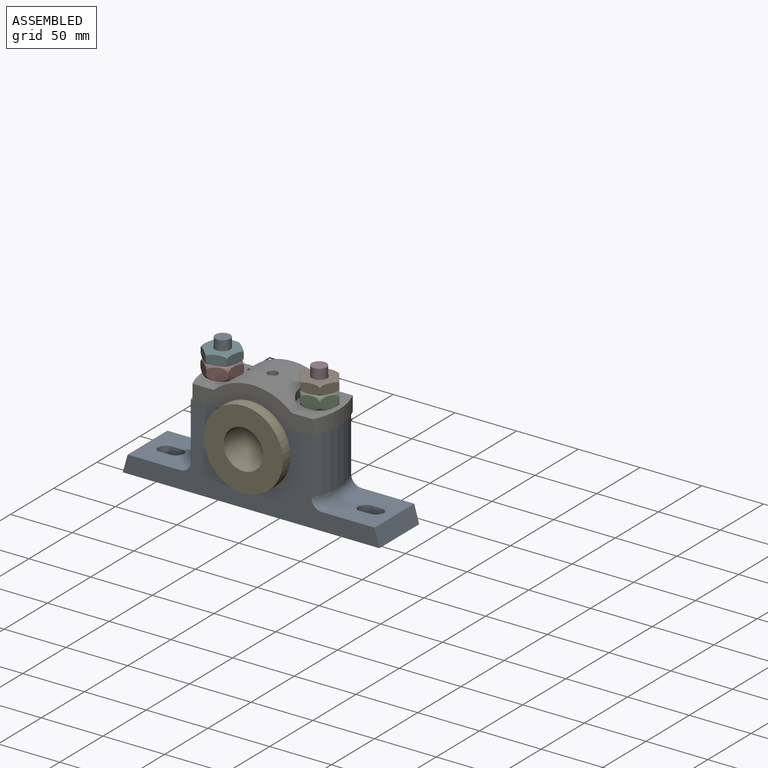
[diagram: assembled view]
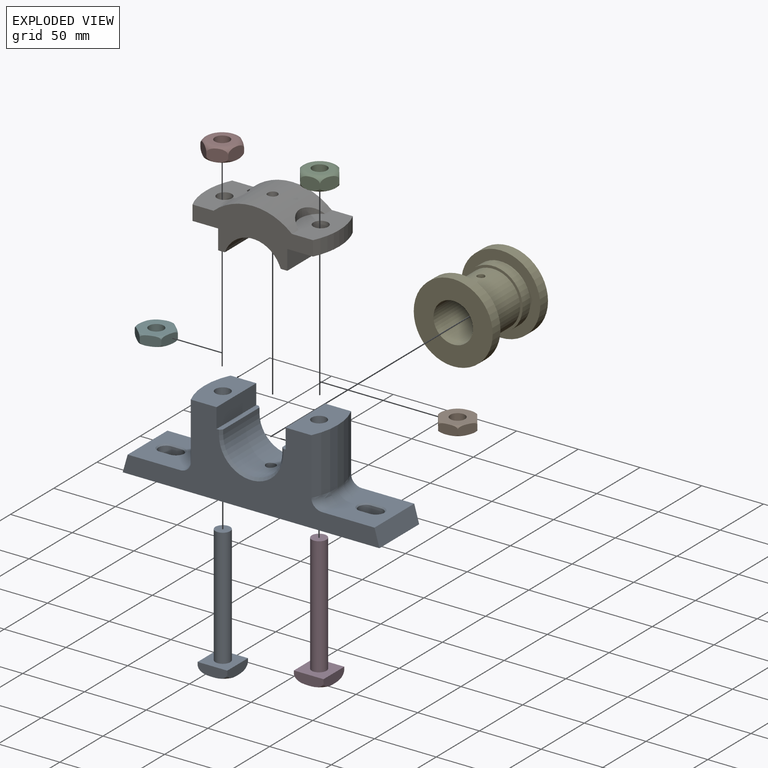
[diagram: exploded view]
GUIDED TOUR — MATED ASSEMBLY (Onshape document 11a59b53d791fe87c3ec195c, AutoMate assembly 11a59b53d791fe87c3ec195c_f65ced6ba96391d790a32922_560dd76b558639ddb064d24c_default)

This assembly has 9 components, labeled P0..P8 below (a component is one placed occurrence of a part; the same part can appear more than once), held together by 6 mates. A mate is a constraint between two components; its type names the relative motion it leaves free:
  FASTENED — locks the two components together rigidly (no relative motion),
  REVOLUTE — leaves rotation about the listed axis free (a hinge).
Axis/direction vectors are unit vectors and 'through' points are millimeter coordinates, both in the assembly's world frame.

MATES
  1. FASTENED "Fastened 3": P4 <-> P8, direction (0.000, 1.000, 0.000) through (0.00, 23.00, 25.78) mm
  2. REVOLUTE "Revolute 4": P5 <-> P7, axis (0.000, 0.000, -1.000) through (-39.48, 23.00, 69.78) mm
  3. FASTENED "Fastened 2": P6 <-> P8, direction (0.000, 0.000, -1.000) through (40.34, 23.00, 45.78) mm
  4. FASTENED "Fastened 4": P3 <-> P8, direction (0.000, 0.000, -1.000) through (39.00, 23.00, -10.22) mm
  5. FASTENED "Fastened 5": P0 <-> P8, direction (0.000, 0.000, 1.000) through (-39.00, 23.00, -10.22) mm
  6. REVOLUTE "Revolute 3": P1 <-> P2, axis (0.000, 0.000, 1.000) through (39.48, 23.00, 69.78) mm

ASSEMBLY ORDER
  1. P8 — the base component [order heuristic]
  2. P4 — core [order heuristic]
  3. P6 — core [order heuristic]
  4. P2 [order verified]
  5. P1 [order verified]
  6. P7 [order verified]
  7. P5 [order verified]
  8. P0 [order verified]
  9. P3 [order verified]
Order-tag legend:
  [order verified] — this step's position reverses a verified removal order: the component was checked to insert without passing through the ones already placed.
  [order heuristic] — the first 3 components form the assembly's core: parts whose collision-free extraction could not be verified, listed in mate-graph order.

Of the 9 components, 1 carries the full construction recipe — the FeatureScript program that regenerates the part's solid from scratch; the rest are supplied as boundary geometry only.
Each toured component is shown spotlighted twice — in the assembled view, then in the exploded view, where a leader line traces a displaced component back to its assembled socket (saturated green if recipe-attached, orange if geometry-only; every other component desaturated gray) — followed by its recipe or geometry summary and the mates that hold it.
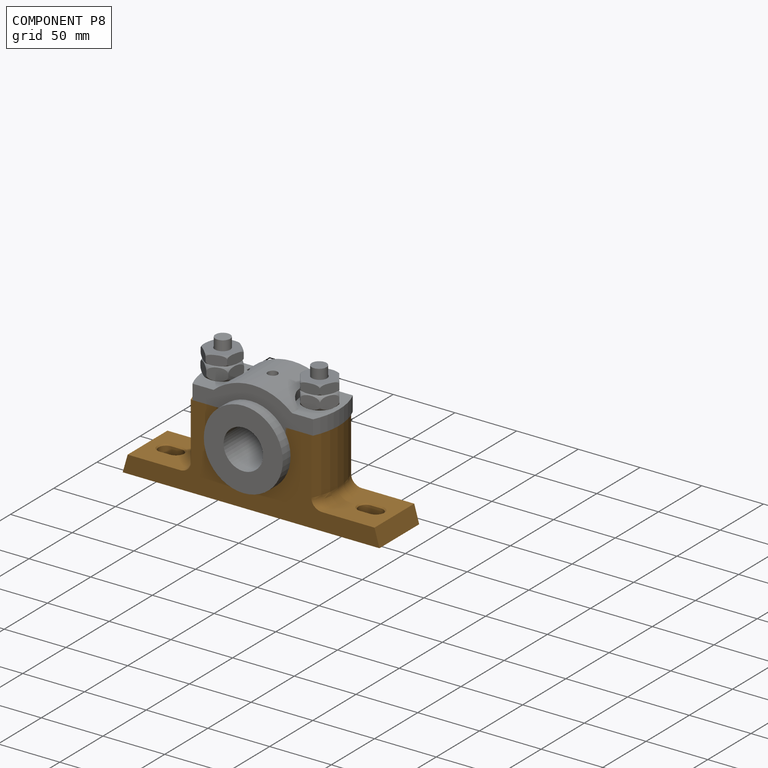
[diagram: component P8 — assembled]
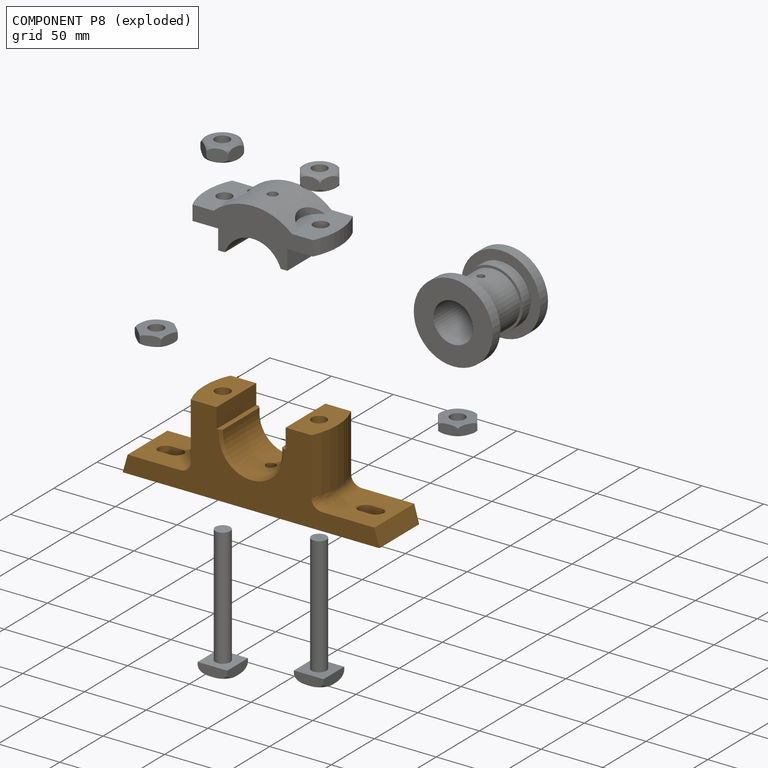
[diagram: component P8 — exploded]
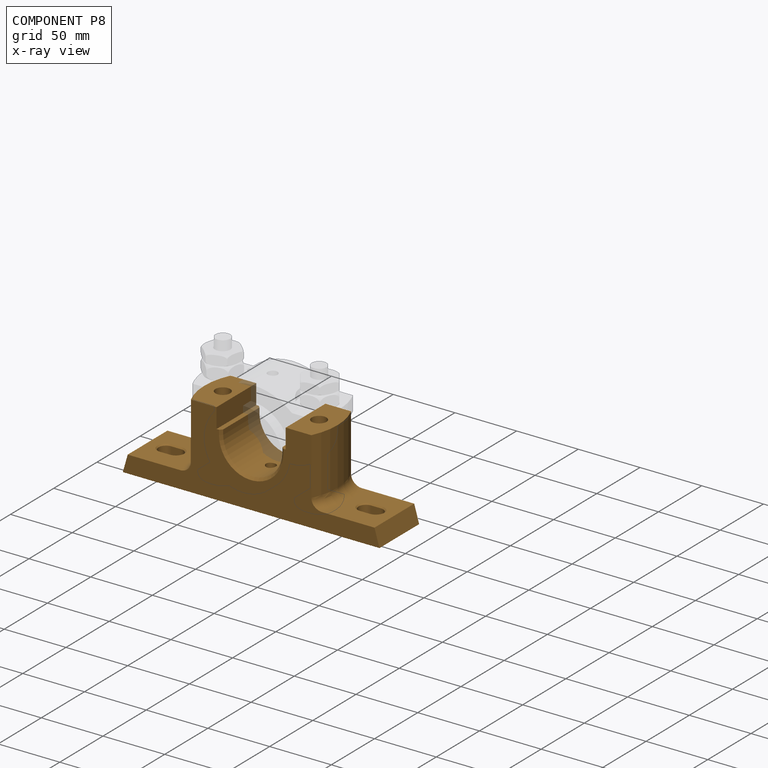
[diagram: component P8 — x-ray view]
COMPONENT P8 — geometry summary (no construction recipe available for this part):
  bounding box: 208.0 x 68.0 x 62.4 mm
  B-rep topology: 1 solid, 61 faces, 308 edges
  volume: 255276 mm^3 (29% of its bounding box)
  symmetry: 2-fold rotationally symmetric about the z axis; mirror-symmetric across its x mid-plane, y mid-plane
Held by: FASTENED mate "Fastened 3" to P4; FASTENED mate "Fastened 2" to P6; FASTENED mate "Fastened 4" to P3; FASTENED mate "Fastened 5" to P0.
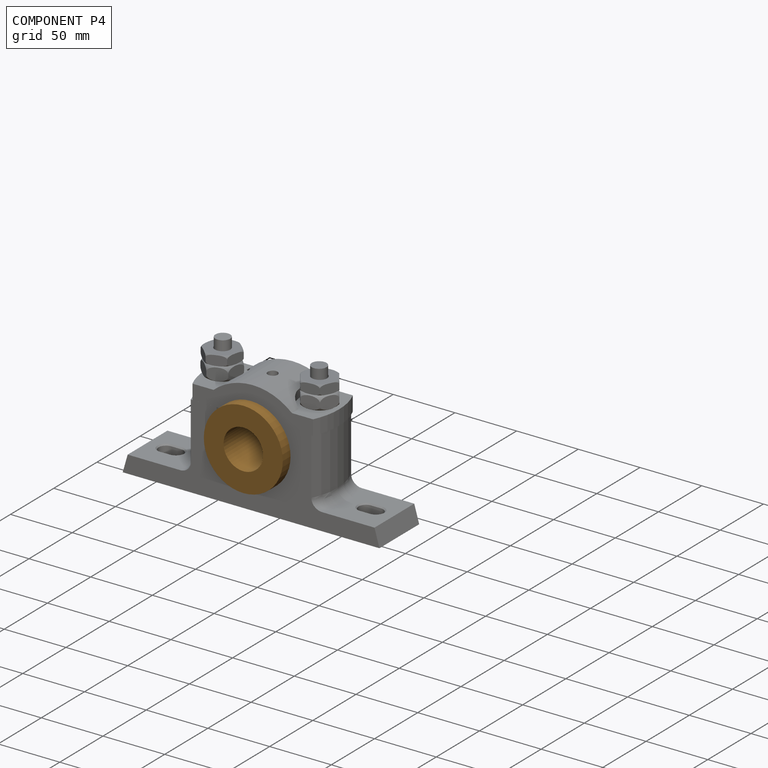
[diagram: component P4 — assembled]
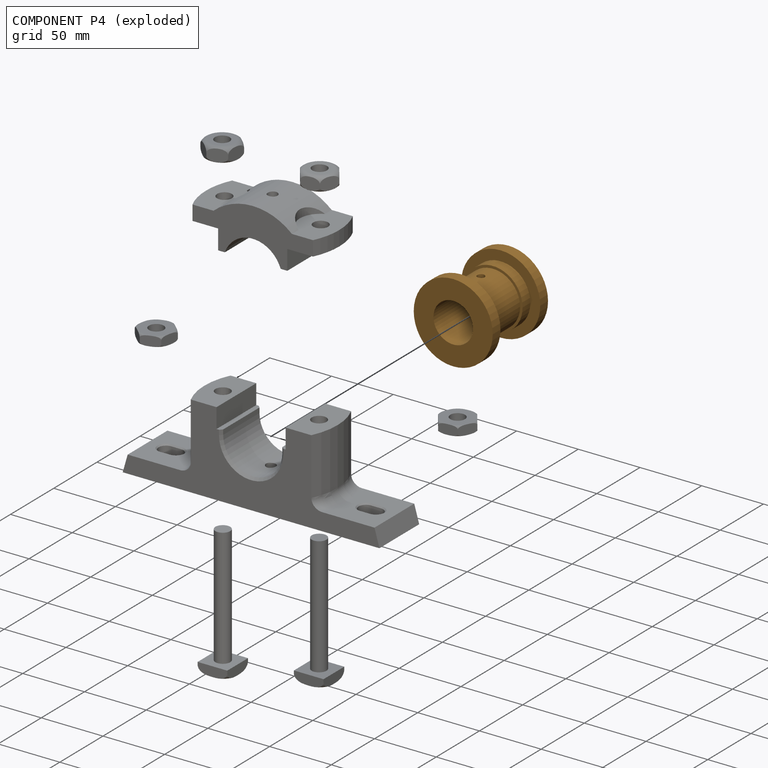
[diagram: component P4 — exploded]
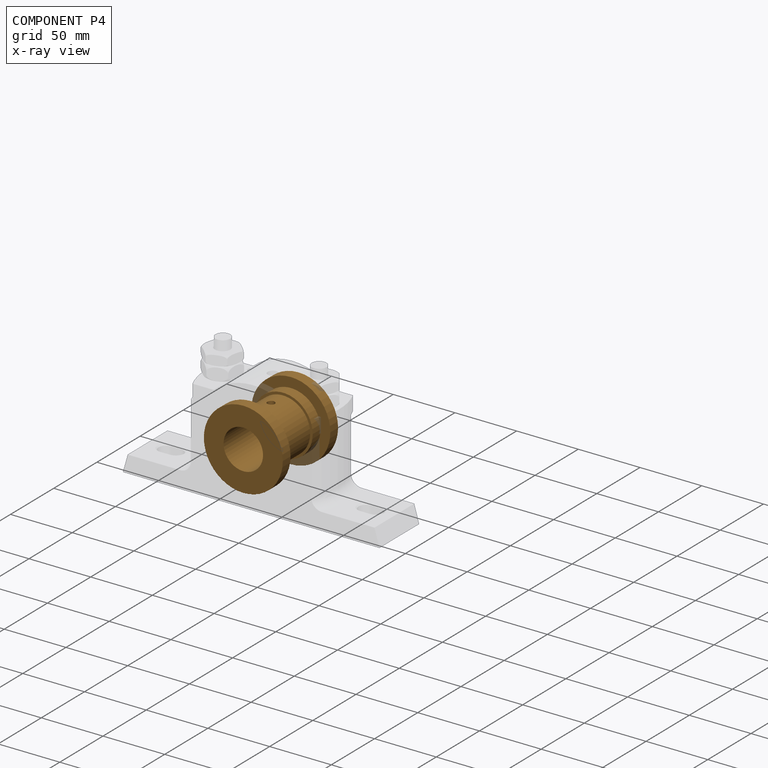
[diagram: component P4 — x-ray view]
COMPONENT P4 — geometry summary (no construction recipe available for this part):
  bounding box: 64.0 x 64.0 x 64.0 mm
  B-rep topology: 1 solid, 16 faces, 56 edges
  volume: 81419 mm^3 (31% of its bounding box)
  symmetry: 2-fold rotationally symmetric about the y axis; mirror-symmetric across its x mid-plane, z mid-plane
Held by: FASTENED mate "Fastened 3" to P8.
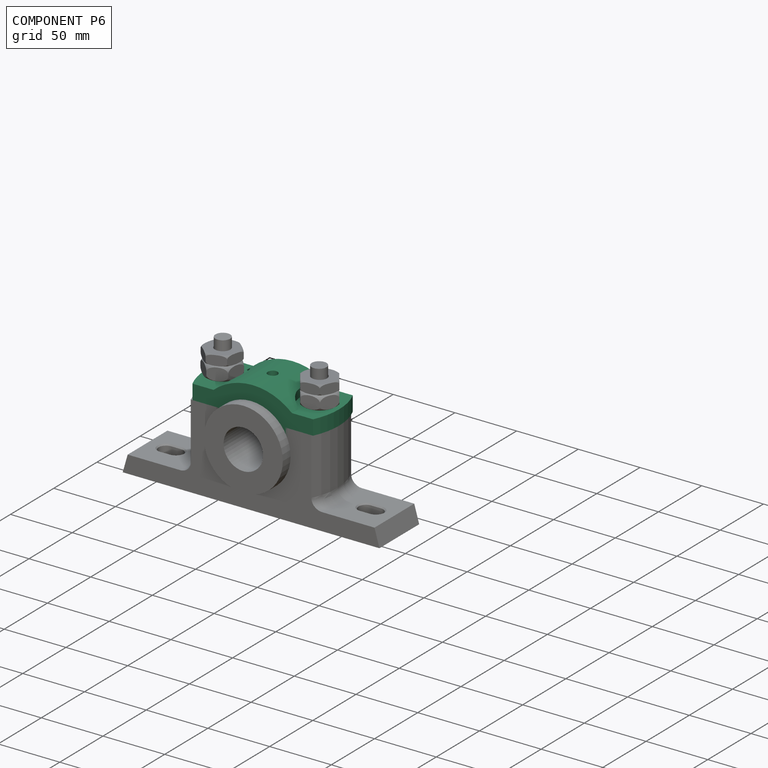
[diagram: component P6 — assembled]
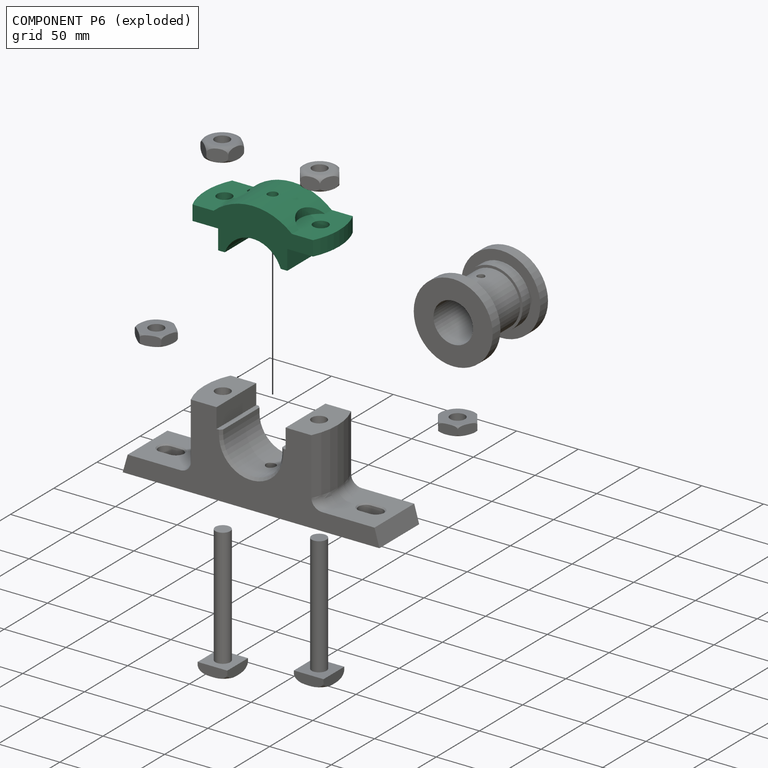
[diagram: component P6 — exploded]
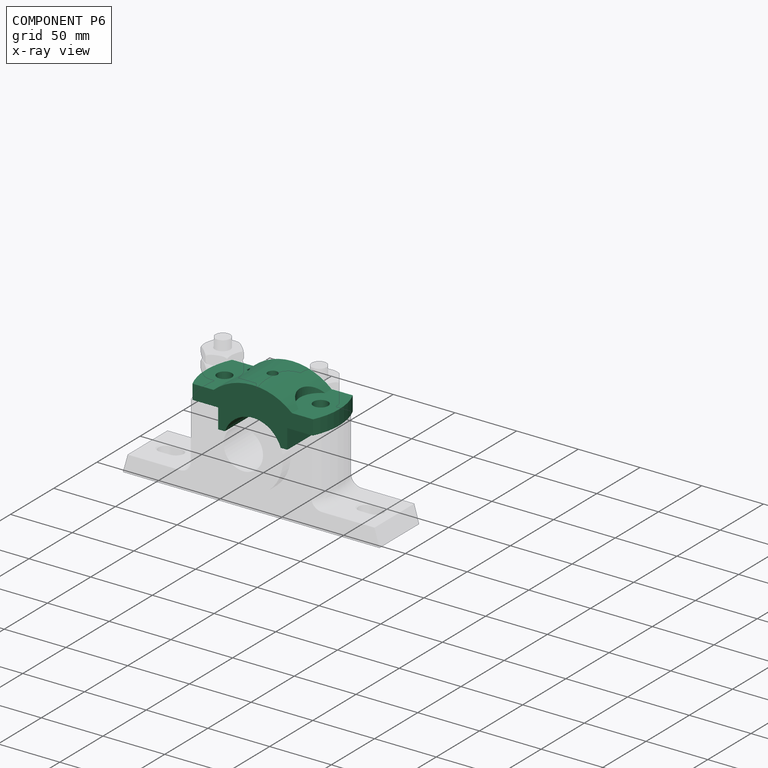
[diagram: component P6 — x-ray view]
COMPONENT P6 — recipe-attached (CADFS 00380877, mesh-verified: the recipe's output STEP matches this component's geometry to below the mesh-comparison resolution (tessellation chordal tolerance ~0.186 mm)).
Held by: FASTENED mate "Fastened 2" to P8.
Construction recipe (FeatureScript — the CAD program that rebuilds this solid; sketch coordinates are in the units given by the * unit suffixes, e.g. mm):

FeatureScript 1511;
import(path : "onshape/std/geometry.fs", version : "1511.0");
import(path : "onshape/std/common.fs", version : "1511.0");
const mm = millimeter;
const VERTEX = EntityType.VERTEX;
const EDGE = EntityType.EDGE;
const FACE = EntityType.FACE;
const BODY = EntityType.BODY;
function v(x, y){return vector(x, y);}
function OD(order){return orderDisambiguation(order);}
function OSD(set){return originalSetDisambiguation(set);}
function TD(topology){return topologyDisambiguation(topology);}
function TDD(query){return trueDependencyDisambiguation(query);}
function sQuery(a, b, c) {return sketchEntityQuery(a, b, c);}

annotation { "Feature Type Name" : "Feature", "Feature Type Description" : "" }
export const myFeature = defineFeature(function(context is Context, id is Id, definition is map)
    precondition{}
    {
        {
            var Q0;
            Q0=qCreatedBy(makeId("Front.planeOp"),FACE);
            var sketch = newSketch(context, id + "F0", { "sketchPlane" : qUnion([Q0])});
            skLineSegment(sketch, "E0.bottom", {"start": v(-54, 0) * mm, "end": v(54, 0) * mm});
            skLineSegment(sketch, "E0.top", {"start": v(-54, 12) * mm, "end": v(54, 12) * mm});
            skLineSegment(sketch, "E0.left", {"start": v(-54, 0) * mm, "end": v(-54, 12) * mm});
            skLineSegment(sketch, "E0.right", {"start": v(54, 0) * mm, "end": v(54, 12) * mm});
            skSolve(sketch);
        }
        {
            var Q0;
            Q0 = qSketchRegion(id + "F0", true);
            extrude(context, id + "F1", {"entities" : qUnion([Q0]), "endBound" : BoundingType.SYMMETRIC, "depth" : 46 * mm});
        }
        {
            var Q0;
            Q0=qCreatedBy(makeId("Front.planeOp"),FACE);
            var sketch = newSketch(context, id + "F2", { "sketchPlane" : qUnion([Q0])});
            skLineSegment(sketch, "E1", {"start": v(28, 0) * mm, "end": v(28, -16) * mm});
            skLineSegment(sketch, "E2", {"start": v(-28, 0) * mm, "end": v(-28, -16) * mm});
            skArc(sketch, "E3", {"start": v(22.63, -16) * mm, "mid": v(0, 0) * mm, "end": v(-22.63, -16) * mm});
            skLineSegment(sketch, "E4", {"start": v(-28, 0) * mm, "end": v(28, 0) * mm});
            skLineSegment(sketch, "E5", {"start": v(-22.63, -16) * mm, "end": v(-28, -16) * mm});
            skLineSegment(sketch, "E6", {"start": v(22.63, -16) * mm, "end": v(28, -16) * mm});
            skSolve(sketch);
        }
        {
            var Q0;
            Q0 = qSketchRegion(id + "F2", true);
            extrude(context, id + "F3", {"entities" : qUnion([Q0]), "operationType" : NewBodyOperationType.ADD, "endBound" : BoundingType.SYMMETRIC, "depth" : 46 * mm});
        }
        {
            var Q0;
            Q0=qCreatedBy(makeId("Front.planeOp"),FACE);
            var sketch = newSketch(context, id + "F4", { "sketchPlane" : qUnion([Q0])});
            skLineSegment(sketch, "E7.0", {"start": v(-54, 12) * mm, "end": v(54, 12) * mm});
            skArc(sketch, "E8", {"start": v(31.75, 12) * mm, "mid": v(0, 24) * mm, "end": v(-31.75, 12) * mm});
            skSolve(sketch);
        }
        {
            var Q0;
            Q0 = qSketchRegion(id + "F4", true);
            extrude(context, id + "F5", {"entities" : qUnion([Q0]), "operationType" : NewBodyOperationType.ADD, "endBound" : BoundingType.SYMMETRIC, "depth" : 46 * mm});
        }
        {
            var Q0;
            Q0=qCreatedBy(makeId("Top.planeOp"),FACE);
            var sketch = newSketch(context, id + "F6", { "sketchPlane" : qUnion([Q0])});
            skCircle(sketch, "E9", {"center": v(-39, 0) * mm, "radius": 6 * mm});
            skCircle(sketch, "E10", {"center": v(39, 0) * mm, "radius": 6 * mm});
            skSolve(sketch);
        }
        {
            var Q0;
            Q0 = qSketchRegion(id + "F6", true);
            extrude(context, id + "F7", {"entities" : qUnion([Q0]), "operationType" : NewBodyOperationType.REMOVE, "endBound" : BoundingType.THROUGH_ALL, "oppositeDirection" : true, "depth" : 25 * mm, "hasSecondDirection" : true, "secondDirectionOppositeDirection" : false, "secondDirectionDepth" : 25 * mm});
        }
        {
            var Q0;
            {var subQ4=sQuery(id+"F0.wireOp",EDGE,"E0.right");var subQ6=sQuery(id+"F0.wireOp",EDGE,"E0.top");Q0=makeQuery(id+"F5.boolean.opBoolean","SPLIT",FACE,{"disambiguationData":[TD([makeQuery(id+"F1.opExtrude","SWEPT_FACE",FACE,{"disambiguationData":[OSD([subQ4])]})])],"derivedFrom":makeQuery(id+"F1.opExtrude","SWEPT_FACE",FACE,{"disambiguationData":[OSD([subQ6])]})});}
            var sketch = newSketch(context, id + "F8", { "sketchPlane" : qUnion([Q0])});
            skLineSegment(sketch, "E11.0", {"start": v(31.75, -23) * mm, "end": v(31.75, 23) * mm});
            skLineSegment(sketch, "E12.0", {"start": v(-31.75, -23) * mm, "end": v(-31.75, 23) * mm});
            skArc(sketch, "E13", {"start": v(-31.75, -15.38) * mm, "mid": v(-22, 0) * mm, "end": v(-31.75, 15.38) * mm});
            skArc(sketch, "E14", {"start": v(31.75, 15.38) * mm, "mid": v(22, 0) * mm, "end": v(31.75, -15.38) * mm});
            skSolve(sketch);
        }
        {
            var Q0;
            Q0 = qSketchRegion(id + "F8", true);
            extrude(context, id + "F9", {"entities" : qUnion([Q0]), "operationType" : NewBodyOperationType.REMOVE, "depth" : 25 * mm});
        }
        {
            var Q0;
            {var subQ4=sQuery(id+"F0.wireOp",EDGE,"E0.right");var subQ6=sQuery(id+"F0.wireOp",EDGE,"E0.top");Q0=makeQuery(id+"F9.boolean.opBoolean","MERGE",FACE,{"derivedFrom":[makeQuery(id+"F5.boolean.opBoolean","SPLIT",FACE,{"disambiguationData":[TD([makeQuery(id+"F1.opExtrude","SWEPT_FACE",FACE,{"disambiguationData":[OSD([subQ4])]})])],"derivedFrom":makeQuery(id+"F1.opExtrude","SWEPT_FACE",FACE,{"disambiguationData":[OSD([subQ6])]})}),makeQuery(id+"F9.opExtrude","CAP_FACE",FACE,{"disambiguationData":[OSD([sQuery(id+"F8.wireOp",EDGE,"E11.0"),sQuery(id+"F8.wireOp",EDGE,"E14")])],"isStart":true})]});}
            var sketch = newSketch(context, id + "F10", { "sketchPlane" : qUnion([Q0])});
            skCircle(sketch, "E15", {"center": v(0, 0) * mm, "radius": 4 * mm});
            skSolve(sketch);
        }
        {
            var Q0;
            Q0 = qSketchRegion(id + "F10", true);
            extrude(context, id + "F11", {"entities" : qUnion([Q0]), "operationType" : NewBodyOperationType.REMOVE, "depth" : 16 * mm});
        }
        {
            var Q0;
            Q0=makeQuery(id+"F11.boolean.opBoolean","COPY",FACE,{"derivedFrom":makeQuery(id+"F11.opExtrude","CAP_FACE",FACE,{"disambiguationData":[OSD([sQuery(id+"F10.wireOp",EDGE,"E15")])],"isStart":true})});
            var sketch = newSketch(context, id + "F12", { "sketchPlane" : qUnion([Q0])});
            skCircle(sketch, "E16", {"center": v(0, 0) * mm, "radius": 3 * mm});
            skSolve(sketch);
        }
        {
            var Q0;
            Q0 = qSketchRegion(id + "F12", true);
            extrude(context, id + "F13", {"entities" : qUnion([Q0]), "operationType" : NewBodyOperationType.REMOVE, "oppositeDirection" : true, "depth" : 25 * mm, "hasSecondDirection" : true, "secondDirectionOppositeDirection" : false, "secondDirectionDepth" : 25 * mm});
        }
        {
            var Q0;
            {var subQ5=sQuery(id+"F0.wireOp",EDGE,"E0.left");var subQ6=sQuery(id+"F0.wireOp",EDGE,"E0.top");Q0=makeQuery(id+"F9.boolean.opBoolean","MERGE",FACE,{"derivedFrom":[makeQuery(id+"F5.boolean.opBoolean","SPLIT",FACE,{"disambiguationData":[TD([makeQuery(id+"F1.opExtrude","SWEPT_FACE",FACE,{"disambiguationData":[OSD([subQ5])]})])],"derivedFrom":makeQuery(id+"F1.opExtrude","SWEPT_FACE",FACE,{"disambiguationData":[OSD([subQ6])]})}),makeQuery(id+"F9.opExtrude","CAP_FACE",FACE,{"disambiguationData":[OSD([sQuery(id+"F8.wireOp",EDGE,"E12.0"),sQuery(id+"F8.wireOp",EDGE,"E13")])],"isStart":true})]});}
            var sketch = newSketch(context, id + "F14", { "sketchPlane" : qUnion([Q0])});
            skArc(sketch, "E17", {"start": v(-48.86, 23) * mm, "mid": v(-54, 0) * mm, "end": v(-48.86, -23) * mm});
            skLineSegment(sketch, "E18.0", {"start": v(48.86, -23) * mm, "end": v(54, -23) * mm});
            skLineSegment(sketch, "E19.0", {"start": v(48.86, 23) * mm, "end": v(54, 23) * mm});
            skArc(sketch, "E20", {"start": v(48.86, -23) * mm, "mid": v(54, 0) * mm, "end": v(48.86, 23) * mm});
            skPoint(sketch, "E21.orphan", {"position": v(31.75, 23) * mm});
            skLineSegment(sketch, "E22", {"start": v(54, 23) * mm, "end": v(54, -23) * mm});
            skPoint(sketch, "E23.orphan", {"position": v(31.75, -23) * mm});
            skLineSegment(sketch, "E24", {"start": v(-48.86, 23) * mm, "end": v(-54, 23) * mm});
            skLineSegment(sketch, "E25", {"start": v(-54, 23) * mm, "end": v(-54, -23) * mm});
            skLineSegment(sketch, "E26", {"start": v(-54, -23) * mm, "end": v(-48.86, -23) * mm});
            skSolve(sketch);
        }
        {
            var Q0;
            Q0 = qSketchRegion(id + "F14", true);
            extrude(context, id + "F15", {"entities" : qUnion([Q0]), "operationType" : NewBodyOperationType.REMOVE, "oppositeDirection" : true, "depth" : 25 * mm});
        }
    });
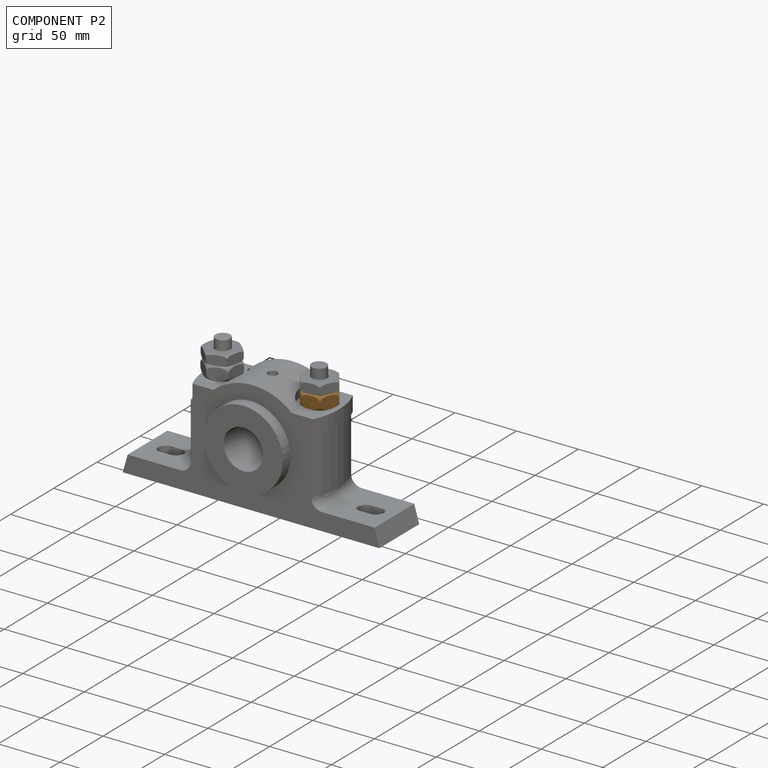
[diagram: component P2 — assembled]
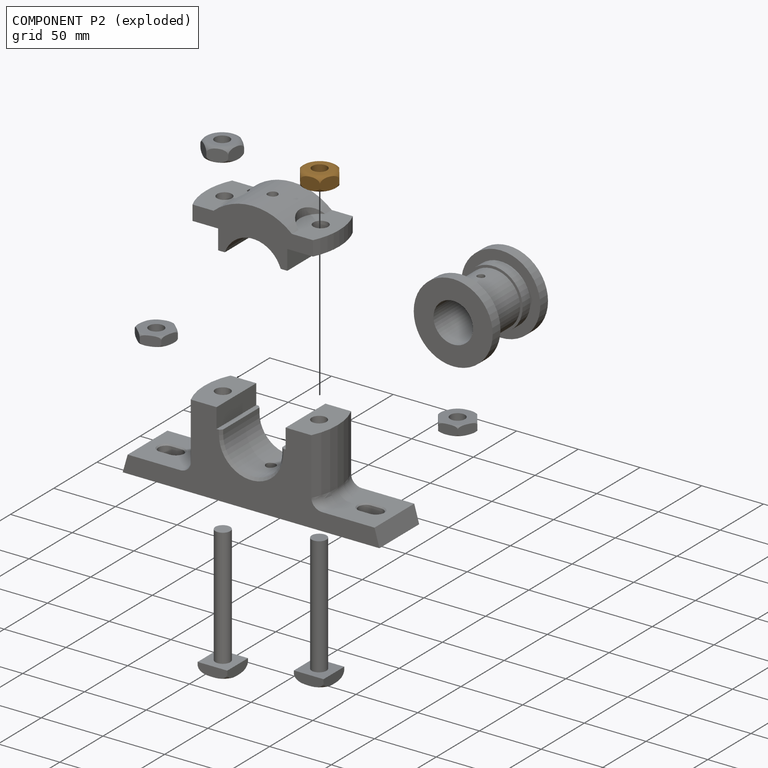
[diagram: component P2 — exploded]
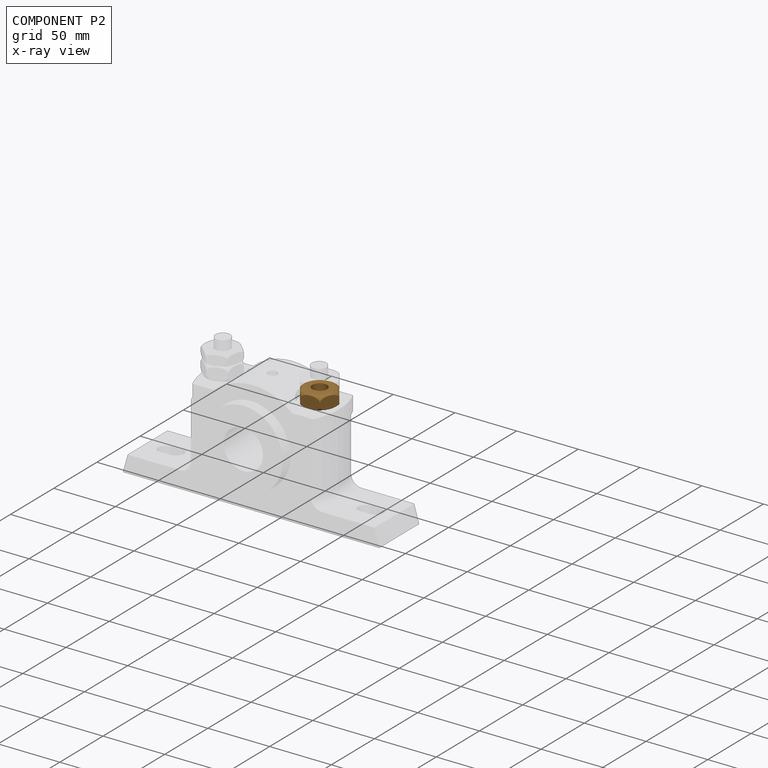
[diagram: component P2 — x-ray view]
COMPONENT P2 — geometry summary (no construction recipe available for this part):
  bounding box: 32.5 x 32.5 x 12.0 mm
  B-rep topology: 1 solid, 11 faces, 54 edges
  volume: 5337 mm^3 (42% of its bounding box)
  symmetry: 2-fold rotationally symmetric about the x axis; 6-fold rotationally symmetric about the y axis; 2-fold rotationally symmetric about the z axis; mirror-symmetric across its x mid-plane, y mid-plane, z mid-plane
Held by: REVOLUTE mate "Revolute 3" to P1.
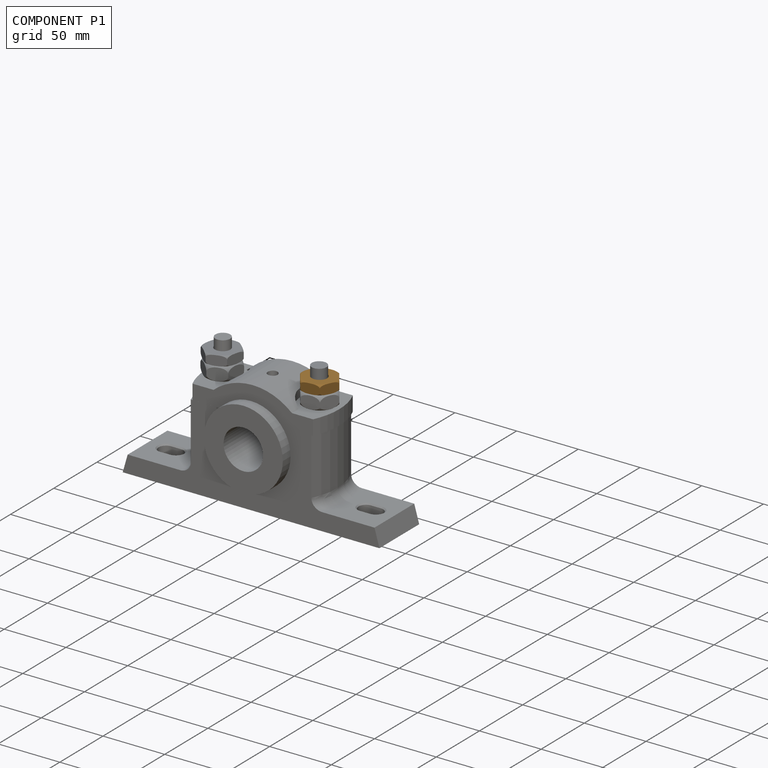
[diagram: component P1 — assembled]
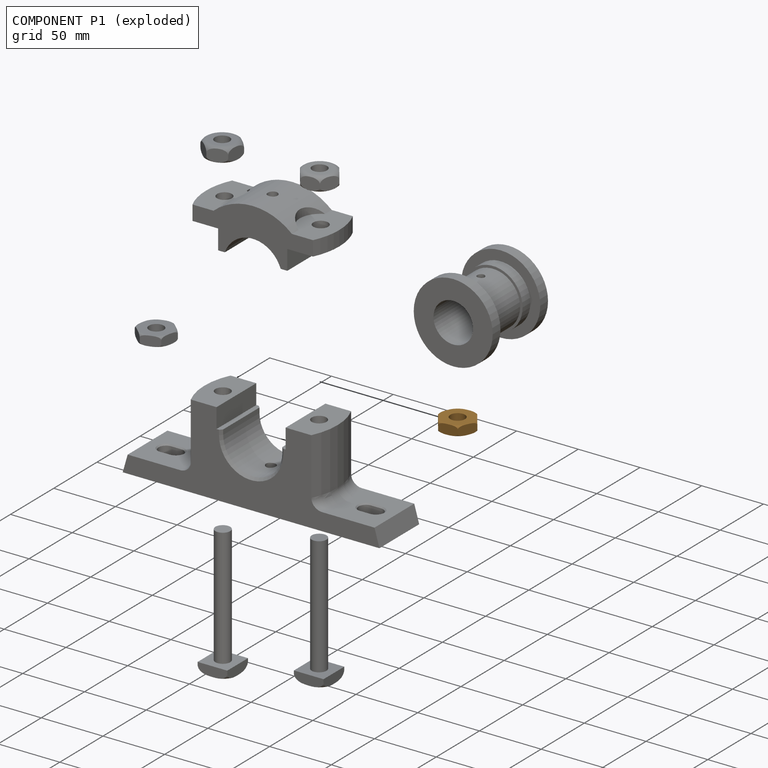
[diagram: component P1 — exploded]
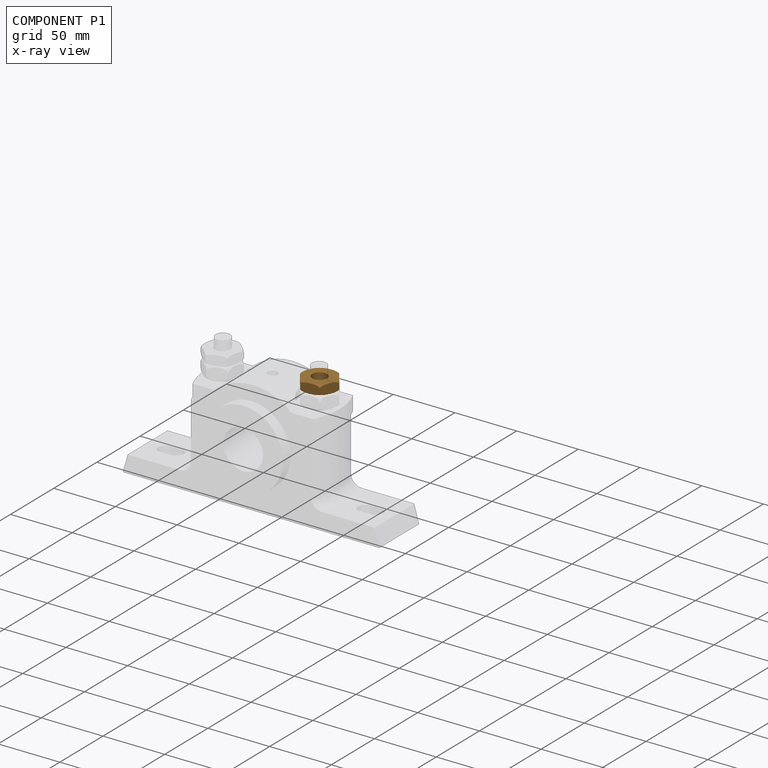
[diagram: component P1 — x-ray view]
COMPONENT P1 — geometry summary (no construction recipe available for this part):
  bounding box: 32.5 x 32.5 x 8.0 mm
  B-rep topology: 1 solid, 11 faces, 54 edges
  volume: 3735 mm^3 (44% of its bounding box)
  symmetry: 2-fold rotationally symmetric about the x axis; 6-fold rotationally symmetric about the y axis; 2-fold rotationally symmetric about the z axis; mirror-symmetric across its x mid-plane, y mid-plane, z mid-plane
Held by: REVOLUTE mate "Revolute 3" to P2.
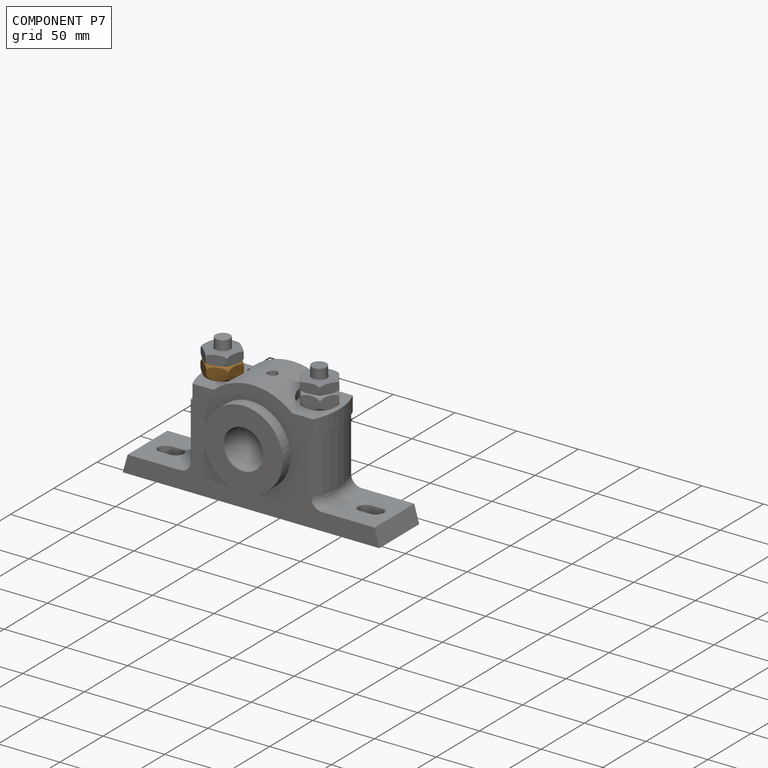
[diagram: component P7 — assembled]
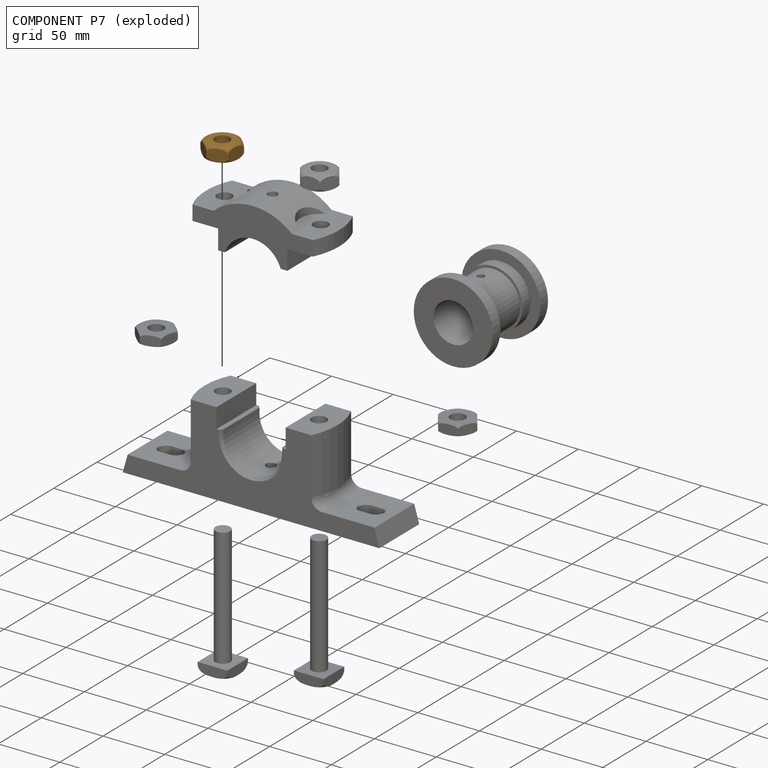
[diagram: component P7 — exploded]
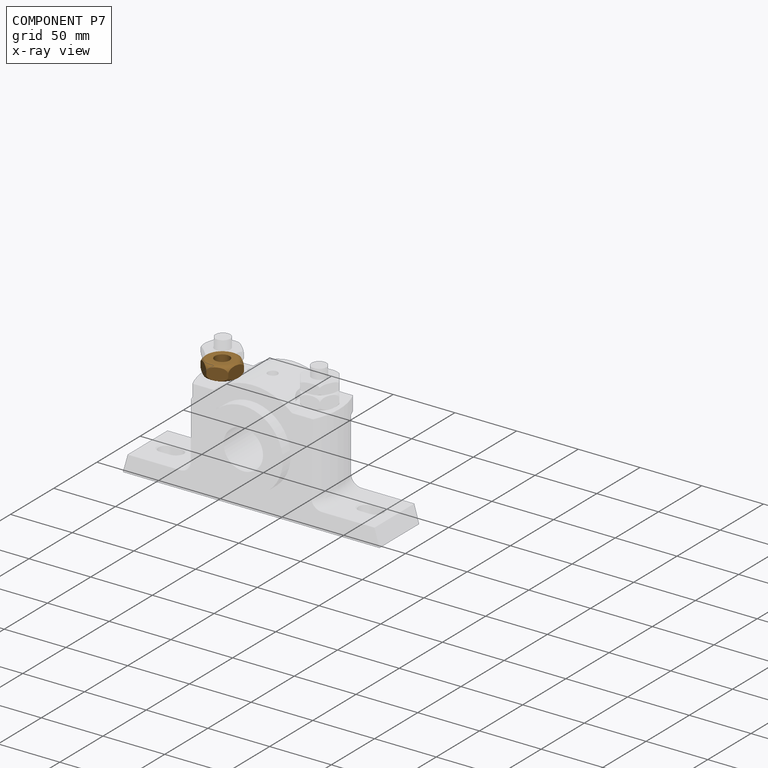
[diagram: component P7 — x-ray view]
COMPONENT P7 — geometry summary (no construction recipe available for this part):
  bounding box: 32.5 x 32.5 x 12.0 mm
  B-rep topology: 1 solid, 11 faces, 54 edges
  volume: 5337 mm^3 (42% of its bounding box)
  symmetry: 2-fold rotationally symmetric about the x axis; 6-fold rotationally symmetric about the y axis; 2-fold rotationally symmetric about the z axis; mirror-symmetric across its x mid-plane, y mid-plane, z mid-plane
Held by: REVOLUTE mate "Revolute 4" to P5.
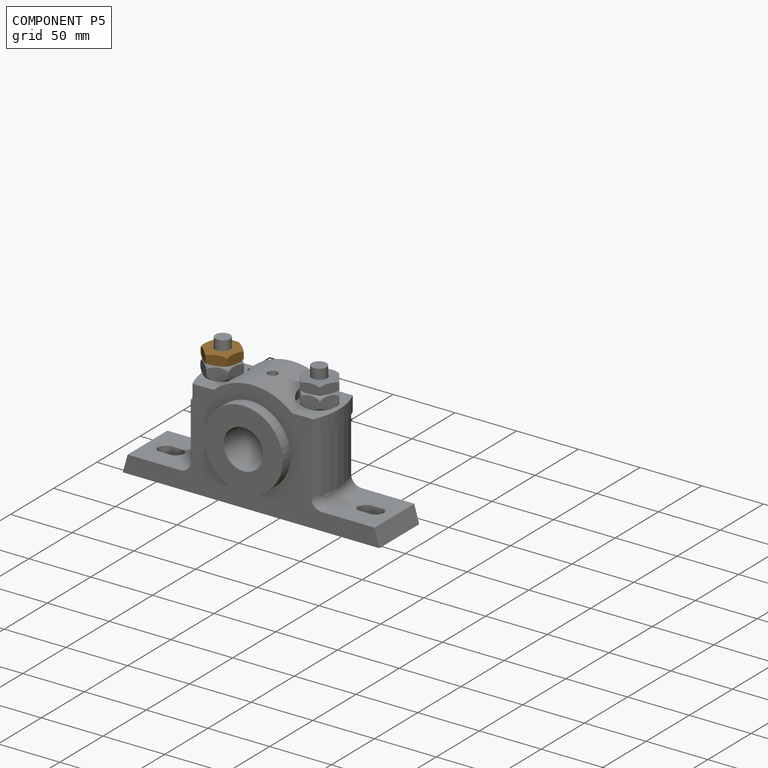
[diagram: component P5 — assembled]
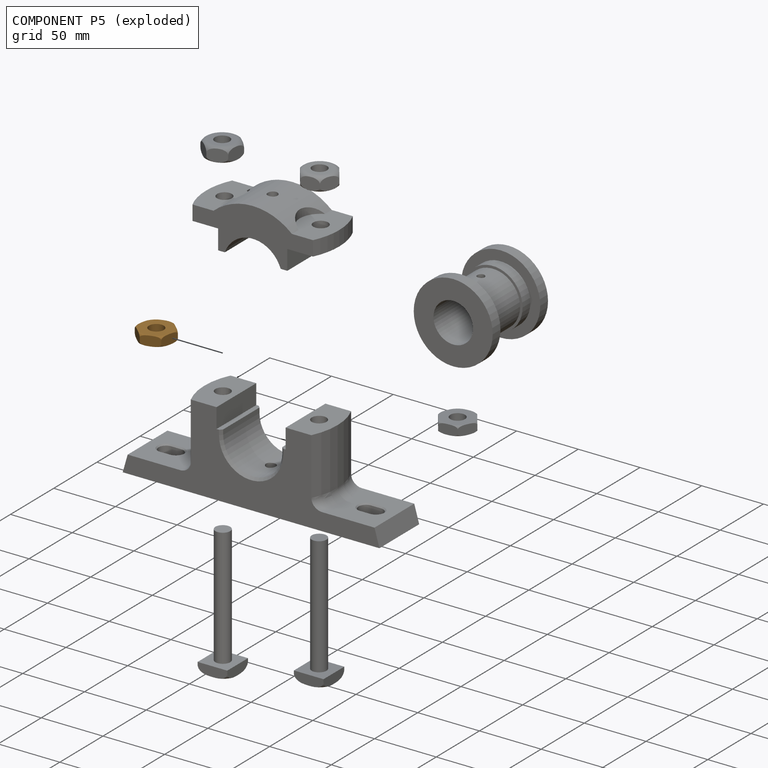
[diagram: component P5 — exploded]
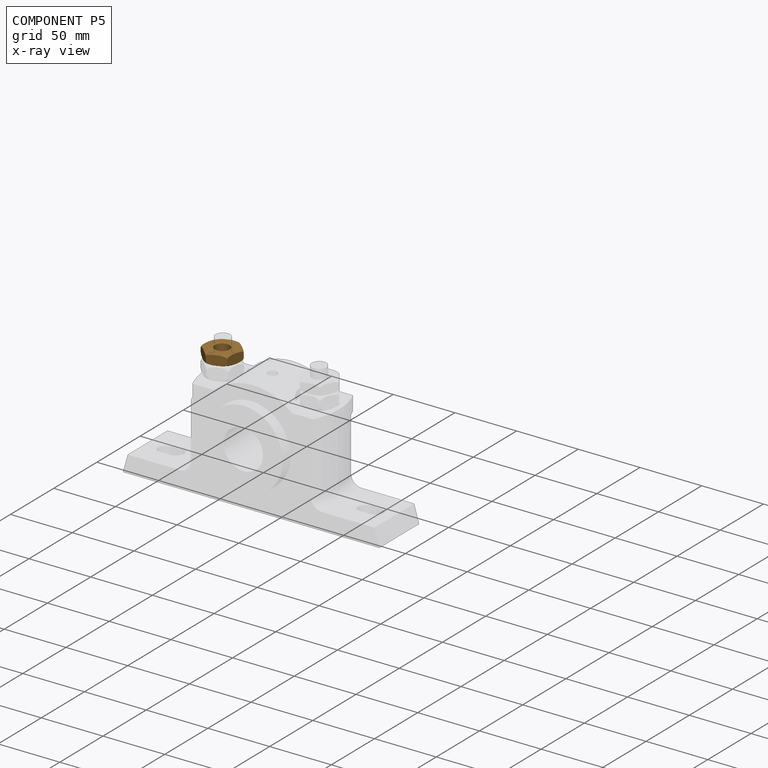
[diagram: component P5 — x-ray view]
COMPONENT P5 — geometry summary (no construction recipe available for this part):
  bounding box: 32.5 x 32.5 x 8.0 mm
  B-rep topology: 1 solid, 11 faces, 54 edges
  volume: 3735 mm^3 (44% of its bounding box)
  symmetry: 2-fold rotationally symmetric about the x axis; 6-fold rotationally symmetric about the y axis; 2-fold rotationally symmetric about the z axis; mirror-symmetric across its x mid-plane, y mid-plane, z mid-plane
Held by: REVOLUTE mate "Revolute 4" to P7.
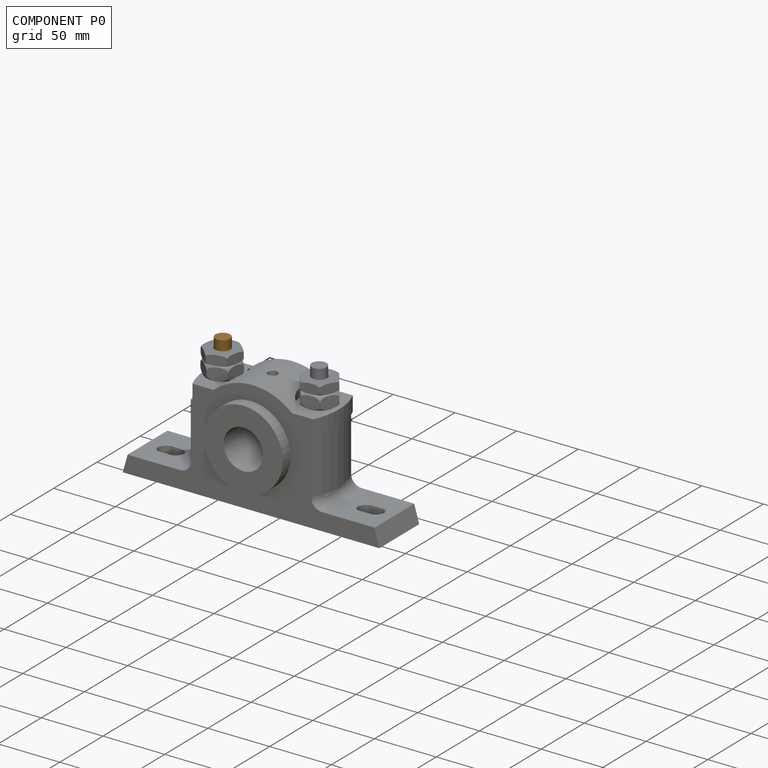
[diagram: component P0 — assembled]
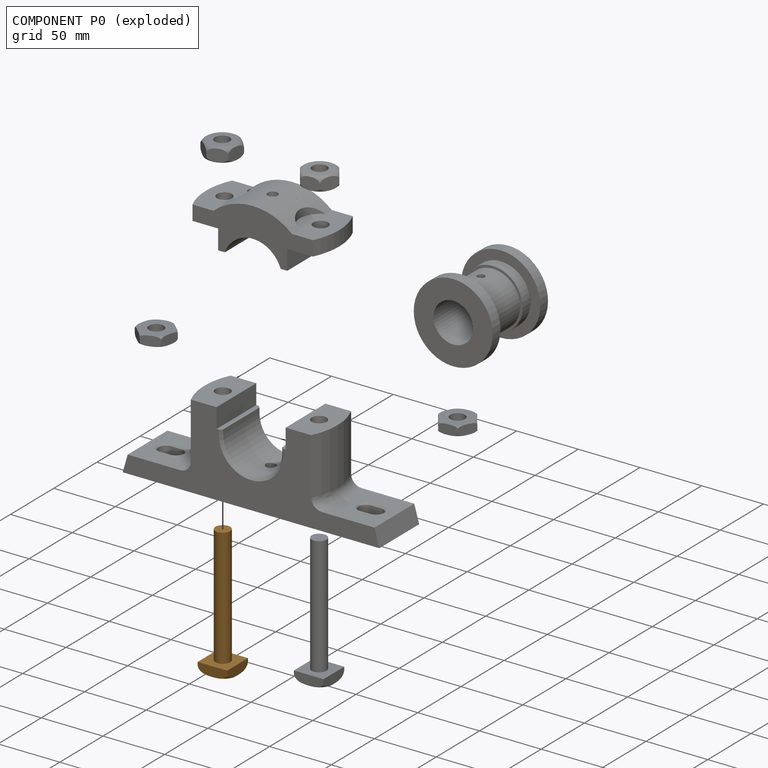
[diagram: component P0 — exploded]
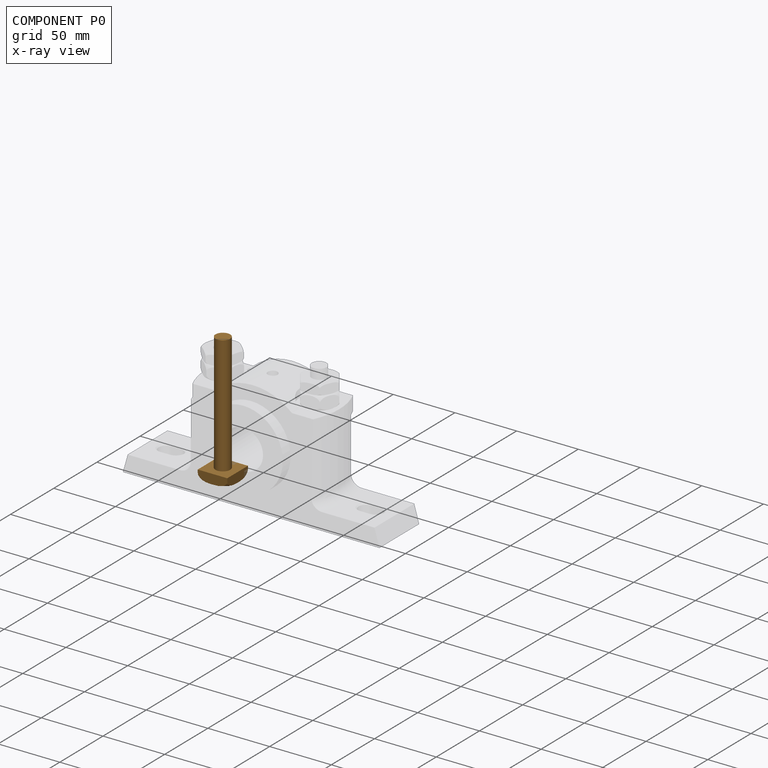
[diagram: component P0 — x-ray view]
COMPONENT P0 — geometry summary (no construction recipe available for this part):
  bounding box: 104.0 x 36.7 x 36.7 mm
  B-rep topology: 1 solid, 9 faces, 36 edges
  volume: 15372 mm^3 (11% of its bounding box)
  symmetry: 4-fold rotationally symmetric about the y axis; mirror-symmetric across its x mid-plane, z mid-plane
Held by: FASTENED mate "Fastened 5" to P8.
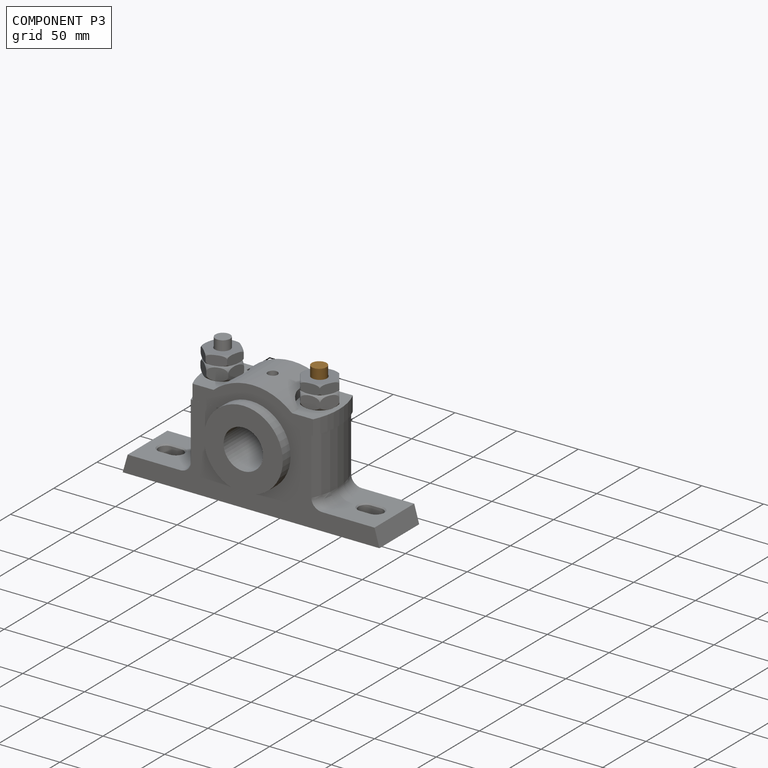
[diagram: component P3 — assembled]
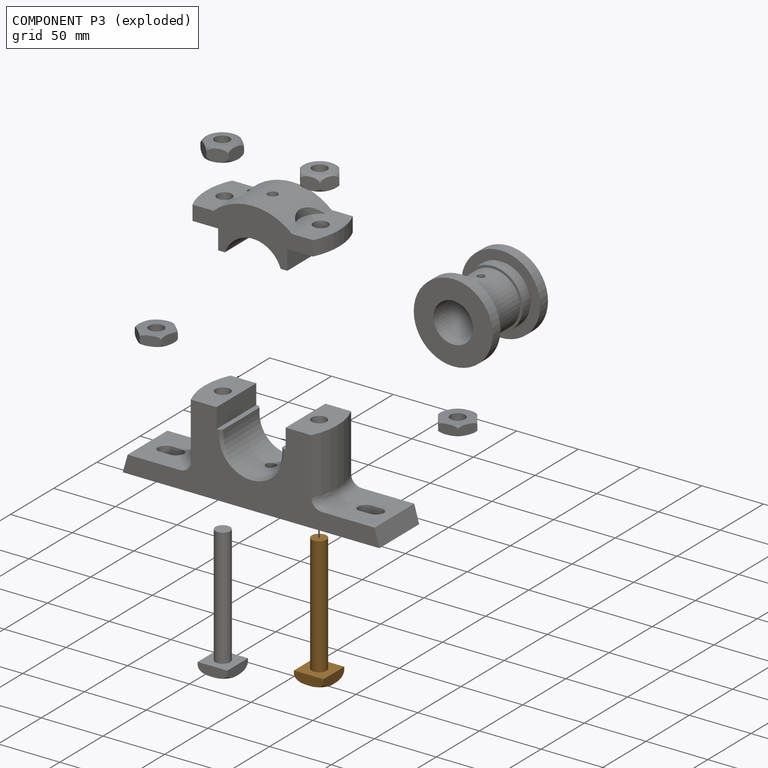
[diagram: component P3 — exploded]
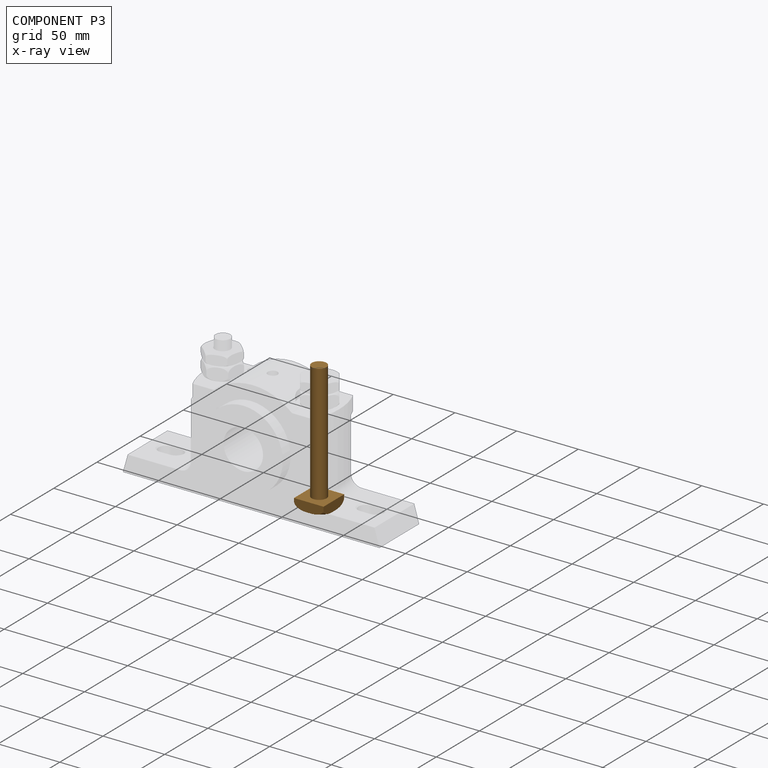
[diagram: component P3 — x-ray view]
COMPONENT P3 — geometry summary (no construction recipe available for this part):
  bounding box: 104.0 x 36.7 x 36.7 mm
  B-rep topology: 1 solid, 9 faces, 36 edges
  volume: 15372 mm^3 (11% of its bounding box)
  symmetry: 4-fold rotationally symmetric about the y axis; mirror-symmetric across its x mid-plane, z mid-plane
Held by: FASTENED mate "Fastened 4" to P8.
PROVENANCE & LICENSES
Assembly (occurrences, transforms, mates, per-part STEP geometry): AutoMate dataset, Zenodo record 7776208, CC0.
Construction recipes: CADFS (HuggingFace VladPyatov/CADFS, CC-BY-4.0, layered over the ABC dataset), FeatureScript reconstruction programs keyed by ABC model id.
Join: ABC meta listings map ABC model id -> Onshape documentId; within a shared document, parts are matched by geometric signature (bounding-box dims + volume at 0.1% relative tolerance, exact B-rep face/solid counts).
Verification: 1 of this assembly's 9 components carries a recipe attachment, and every attachment is mesh-verified: the CADFS STEP and the AutoMate member STEP were compared as meshes in their shared local frame (symmetric sampled-point-to-mesh distance); worst across the 1 attachment: below the mesh-comparison resolution (tessellation chordal tolerance ~0.186 mm) on a 124 mm part.
Renders: orthographic iso camera (az 35 / el 25); the floor grid conveys scale (grid pitch printed in each image; no ruler). In the exploded view each component is displaced by its stored offset vector: the offsets alone carry the explosion direction (mate normal/axis signs are not orientation cues and do not encode it), and separation distances are assigned per mate-chain, not proportionally to assembly-order depth.
